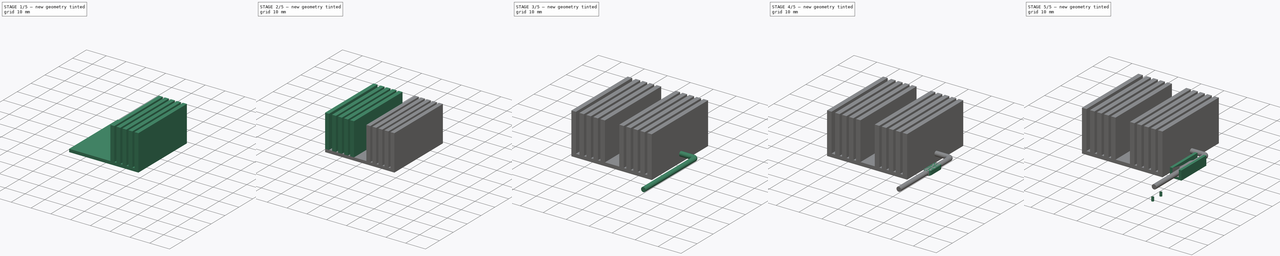
[diagram: build sequence overview — one tinted view per stage of 5, left to right]
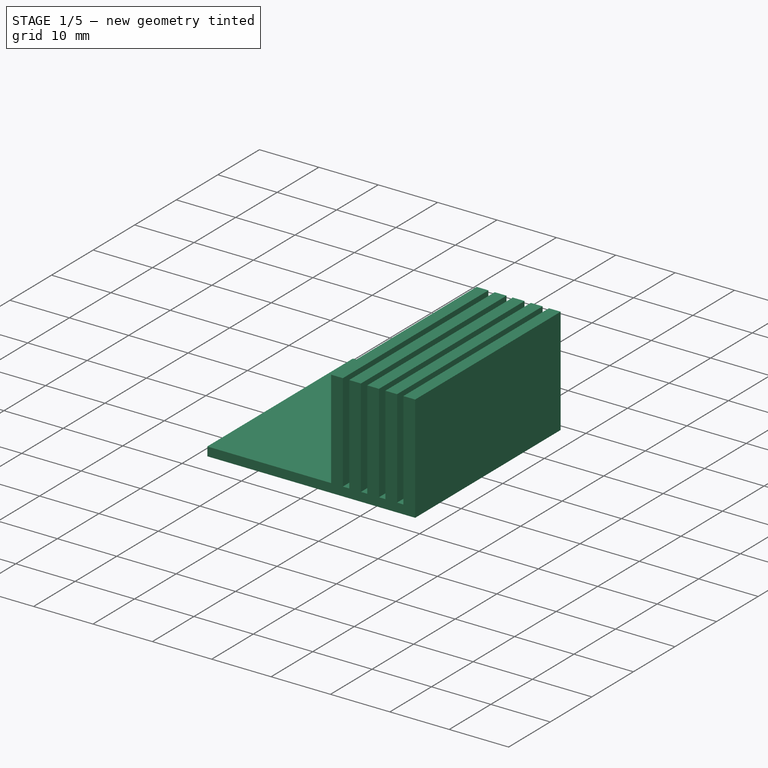
[diagram: stage 1 of 5 — iso view after this stage's code; geometry added in this stage tinted green]
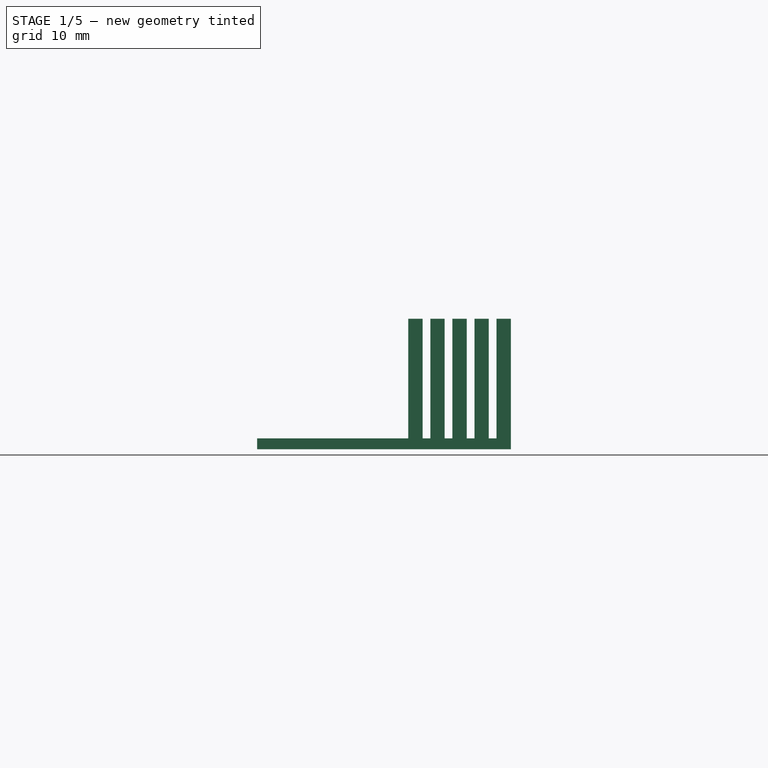
[diagram: stage 1 of 5 — front view after this stage's code; geometry added in this stage tinted green]
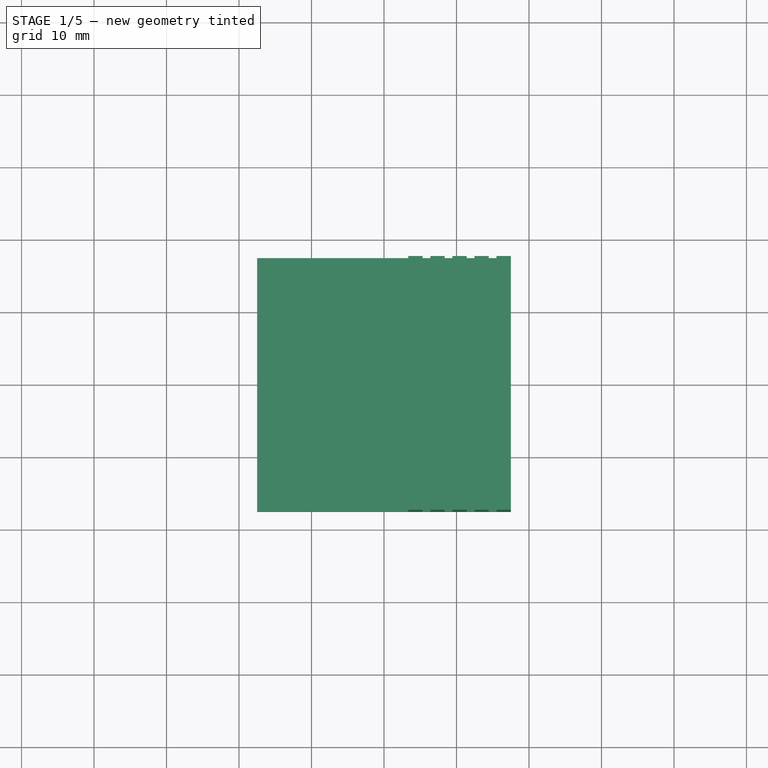
[diagram: stage 1 of 5 — top view after this stage's code; geometry added in this stage tinted green]
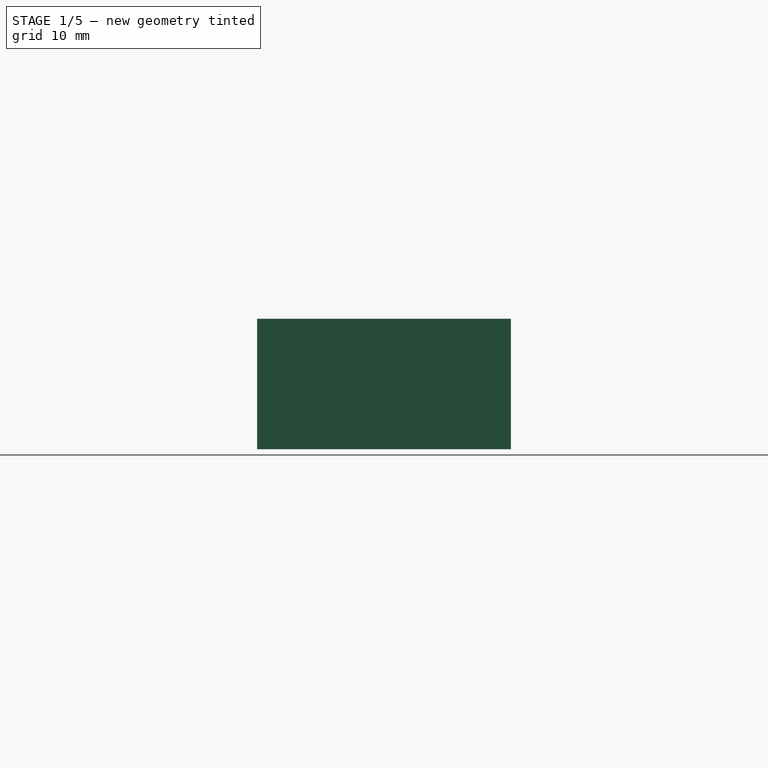
[diagram: stage 1 of 5 — right view after this stage's code; geometry added in this stage tinted green]
FCSTD DOCUMENT  (FreeCAD 0.20R29177 (Git))
Label: Aavid-heatsink1
License: All rights reserved
LicenseURL: http://en.wikipedia.org/wiki/All_rights_reserved
objects: PartDesign::AdditiveBox×17, PartDesign::Fillet×8, PartDesign::Body×4, Part::FeaturePython×2, Part::Feature×2, PartDesign::Chamfer×2, App::DocumentObjectGroup×1, Sketcher::SketchObject×1, PartDesign::SubtractiveEllipsoid×1, PartDesign::SubtractiveBox×1, App::Part×1, App::MeasureDistance×1
note: 67 computed .brp shape members not serialized (recipe doc carries the construction recipe); baked Part::Feature solids carry a one-line shape summary decoded from their .brp

FEATURE [Part::Feature] Shape001003  label="TopPads"
  shape: bbox 50.56 x 68.34 x 0.01 mm, 16 faces, 4 solids (baked)
FEATURE [Part::Feature] Shape001004  label="BotPads"
  shape: bbox 50.56 x 68.34 x 0.01 mm, 16 faces, 4 solids (baked)
FEATURE [App::DocumentObjectGroup] Heatsink_35x35mm_SpringFixation_fp
  Group = -> [FFab_lines,Shape001003,Shape001004,THPs]
FEATURE [Sketcher::SketchObject] Sketch  label="Pads_Poly"
  FullyConstrained = false
  MapMode = 5
  Support = -> [XY_Plane]
  sketch-geometry (56):
    g0: LineSegment StartX=-17.5 StartY=-17.45 StartZ=0 EndX=-17.5 EndY=17.55 EndZ=0
    g1: LineSegment StartX=-17.5 StartY=17.55 StartZ=0 EndX=-17.5 EndY=-17.55 EndZ=0
    g2: LineSegment StartX=-17.5 StartY=17.55 StartZ=0 EndX=17.55 EndY=17.5 EndZ=0
    g3: LineSegment StartX=17.55 StartY=17.5 StartZ=0 EndX=-17.5 EndY=17.45 EndZ=0
    g4: LineSegment StartX=17.55 StartY=17.5 StartZ=0 EndX=17.55 EndY=-17.5 EndZ=0
    g5: LineSegment StartX=17.5 StartY=-17.55 StartZ=0 EndX=17.45 EndY=17.5 EndZ=0
    g6: LineSegment StartX=17.5 StartY=-17.55 StartZ=0 EndX=-17.5 EndY=-17.55 EndZ=0
    g7: LineSegment StartX=-17.5 StartY=-17.45 StartZ=0 EndX=17.55 EndY=-17.5 EndZ=0
    g8: LineSegment StartX=-26.72 StartY=25.4 StartZ=0 EndX=-26.67 EndY=35.61 EndZ=0
    g9: LineSegment StartX=-26.67 StartY=35.61 StartZ=0 EndX=-26.62 EndY=25.4 EndZ=0
    g10: LineSegment StartX=-21.54 StartY=35.56 StartZ=0 EndX=-21.54 EndY=25.4 EndZ=0
    g11: LineSegment StartX=-21.64 StartY=25.4 StartZ=0 EndX=-21.64 EndY=35.56 EndZ=0
    g12: LineSegment StartX=-21.54 StartY=25.4 StartZ=0 EndX=-26.72 EndY=25.4 EndZ=0
    g13: LineSegment StartX=-26.72 StartY=25.4 StartZ=0 EndX=-21.54 EndY=25.4 EndZ=0
    g14: LineSegment StartX=-22.81 StartY=25.4 StartZ=0 EndX=-22.8271 EndY=2.54 EndZ=0
    g15: ArcOfCircle CenterX=-21.59 CenterY=2.55711 CenterZ=0 NormalX=0 NormalY=0 NormalZ=1 AngleXU=-1.5708 Radius=1.23726 StartAngle=4.72622 EndAngle=6.28319
    g16: LineSegment StartX=-21.59 StartY=1.31985 StartZ=0 EndX=-17.5 EndY=1.32 EndZ=0
    g17: LineSegment StartX=-17.5 StartY=1.22 StartZ=0 EndX=-21.59 EndY=1.29434 EndZ=0
    g18: ArcOfCircle CenterX=-21.5814 CenterY=2.54 CenterZ=0 NormalX=0 NormalY=0 NormalZ=1 AngleXU=-1.5708 Radius=1.24569 StartAngle=4.71239 EndAngle=6.27632
    g19: LineSegment StartX=-22.91 StartY=2.54 StartZ=0 EndX=-22.91 EndY=25.4 EndZ=0
    g20: LineSegment StartX=-25.35 StartY=1.27 StartZ=0 EndX=-25.45 EndY=25.4 EndZ=0
    g21: LineSegment StartX=-25.35 StartY=25.4 StartZ=0 EndX=-25.35 EndY=1.27 EndZ=0
    g22: ArcOfCircle CenterX=-22.86 CenterY=1.26185 CenterZ=0 NormalX=0 NormalY=0 NormalZ=1 AngleXU=-1.5708 Radius=2.49001 StartAngle=4.70911 EndAngle=6.28319
    g23: LineSegment StartX=-22.86 StartY=-1.22817 StartZ=0 EndX=-17.5 EndY=-1.22 EndZ=0
    g24: LineSegment StartX=-17.5 StartY=-1.32 StartZ=0 EndX=-22.86 EndY=-1.32 EndZ=0
    g25: ArcOfCircle CenterX=-22.86 CenterY=1.36352 CenterZ=0 NormalX=0 NormalY=0 NormalZ=1 AngleXU=-1.5708 Radius=2.59169 StartAngle=4.74848 EndAngle=6.28319
    g26: LineSegment StartX=-21.54 StartY=35.56 StartZ=0 EndX=-26.67 EndY=35.61 EndZ=0
    g27: LineSegment StartX=-26.67 StartY=35.61 StartZ=0 EndX=-21.54 EndY=35.56 EndZ=0
    g28: LineSegment StartX=21.59 StartY=-35.51 StartZ=0 EndX=21.59 EndY=-25.25 EndZ=0
    g29: LineSegment StartX=21.59 StartY=-25.25 StartZ=0 EndX=21.59 EndY=-35.51 EndZ=0
    g30: LineSegment StartX=26.67 StartY=-25.25 StartZ=0 EndX=26.72 EndY=-35.46 EndZ=0
    g31: LineSegment StartX=26.62 StartY=-35.46 StartZ=0 EndX=26.67 EndY=-25.25 EndZ=0
    g32: LineSegment StartX=21.59 StartY=-25.25 StartZ=0 EndX=26.67 EndY=-25.25 EndZ=0
    g33: LineSegment StartX=26.67 StartY=-25.35 StartZ=0 EndX=21.59 EndY=-25.35 EndZ=0
    g34: LineSegment StartX=25.35 StartY=-25.3 StartZ=0 EndX=25.35 EndY=-1.17 EndZ=0
    g35: ArcOfCircle CenterX=22.797 CenterY=-1.16077 CenterZ=0 NormalX=0 NormalY=0 NormalZ=1 AngleXU=1.5708 Radius=2.57229 StartAngle=4.7088 EndAngle=6.25869
    g36: LineSegment StartX=22.86 StartY=1.32 StartZ=0 EndX=17.5 EndY=1.32 EndZ=0
    g37: LineSegment StartX=17.5 StartY=1.42 StartZ=0 EndX=22.86 EndY=1.41075 EndZ=0
    g38: ArcOfCircle CenterX=22.86 CenterY=-1.17 CenterZ=0 NormalX=0 NormalY=0 NormalZ=1 AngleXU=1.5708 Radius=2.58075 StartAngle=4.71239 EndAngle=6.28319
    g39: LineSegment StartX=25.4407 StartY=-1.17 StartZ=0 EndX=25.45 EndY=-25.3 EndZ=0
    g40: LineSegment StartX=21.59 StartY=-35.51 StartZ=0 EndX=26.72 EndY=-35.46 EndZ=0
    g41: LineSegment StartX=26.72 StartY=-35.46 StartZ=0 EndX=21.59 EndY=-35.51 EndZ=0
    g42: LineSegment StartX=22.81 StartY=-2.44 StartZ=0 EndX=22.91 EndY=-25.3 EndZ=0
    g43: LineSegment StartX=22.81 StartY=-25.3 StartZ=0 EndX=22.81 EndY=-2.44 EndZ=0
    g44: ArcOfCircle CenterX=21.59 CenterY=-2.35008 CenterZ=0 NormalX=0 NormalY=0 NormalZ=1 AngleXU=1.5708 Radius=1.22331 StartAngle=4.63882 EndAngle=6.28319
    g45: LineSegment StartX=21.59 StartY=-1.12677 StartZ=0 EndX=17.5 EndY=-1.22 EndZ=0
    g46: LineSegment StartX=17.5 StartY=-1.12 StartZ=0 EndX=21.59 EndY=-1.12677 EndZ=0
    g47: ArcOfCircle CenterX=21.59 CenterY=-2.44679 CenterZ=0 NormalX=0 NormalY=0 NormalZ=1 AngleXU=1.5708 Radius=1.32002 StartAngle=4.71753 EndAngle=6.28319
    g48: LineSegment StartX=21.59 StartY=-18.525 StartZ=0 EndX=21.59 EndY=-3.125 EndZ=0
    g49: LineSegment StartX=21.59 StartY=-3.125 StartZ=0 EndX=21.59 EndY=-18.525 EndZ=0
    g50: LineSegment StartX=21.59 StartY=-18.525 StartZ=0 EndX=26.67 EndY=-18.525 EndZ=0
    g51: LineSegment StartX=26.67 StartY=-18.625 StartZ=0 EndX=21.59 EndY=-18.625 EndZ=0
    g52: LineSegment StartX=26.67 StartY=-18.525 StartZ=0 EndX=26.62 EndY=-3.075 EndZ=0
    g53: LineSegment StartX=26.72 StartY=-3.075 StartZ=0 EndX=26.67 EndY=-18.525 EndZ=0
    g54: LineSegment StartX=21.59 StartY=-3.125 StartZ=0 EndX=26.72 EndY=-3.075 EndZ=0
    g55: LineSegment StartX=26.72 StartY=-3.075 StartZ=0 EndX=21.59 EndY=-3.125 EndZ=0
  constraints (50):
    c: Coincident(g8,g12)
    c: Coincident(g8,g13)
    c: Coincident(g27,g8)
    c: Coincident(g27,g9)
    c: Coincident(g27,g26)
    c: Coincident(g22,g20)
    c: Coincident(g23,g25)
    c: Coincident(g23,g22)
    c: Coincident(g14,g15)
    c: Coincident(g14,g18)
    c: Coincident(g18,g17)
    c: Coincident(g15,g16)
    c: Coincident(g10,g12)
    c: Coincident(g10,g13)
    c: Coincident(g10,g26)
    c: Coincident(g10,g27)
    c: Coincident(g6,g1)
    c: Coincident(g7,g0)
    c: Coincident(g2,g0)
    c: Coincident(g2,g1)
    c: Coincident(g6,g5)
    c: Coincident(g4,g7)
    c: Coincident(g4,g3)
    c: Coincident(g4,g2)
    c: Coincident(g41,g28)
    c: Coincident(g41,g40)
    c: Coincident(g41,g29)
    c: Coincident(g32,g28)
    c: Coincident(g32,g29)
    c: Coincident(g50,g48)
    c: Coincident(g50,g49)
    c: Coincident(g55,g54)
    c: Coincident(g55,g48)
    c: Coincident(g55,g49)
    c: Coincident(g47,g45)
    c: Coincident(g47,g44)
    c: Coincident(g47,g46)
    c: Coincident(g44,g43)
    c: Coincident(g44,g42)
    c: Coincident(g37,g35)
    c: Coincident(g37,g38)
    c: Coincident(g39,g38)
    c: Coincident(g30,g40)
    c: Coincident(g30,g41)
    c: Coincident(g32,g31)
    c: Coincident(g32,g30)
    c: Coincident(g50,g52)
    c: Coincident(g50,g53)
    c: Coincident(g53,g54)
    c: Coincident(g53,g55)
FEATURE [PartDesign::AdditiveBox] Box  label="metal"
  AttacherType = Attacher::AttachEngine3D
  AttachmentOffset = pos=(-17.5,-17.5,0) rot=(0,0,1;0rad)
  Height = 1.5
  Length = 35
  MapMode = 5
  Placement = pos=(-17.5,-17.5,0) rot=(0,0,1;0rad)
  Support = -> [XY_Plane]
  Width = 35
FEATURE [PartDesign::Body] Body003  label="metal-film"
  Group = -> [Box016]
  Origin = -> Origin004
  Tip = -> Box016
FEATURE [PartDesign::AdditiveBox] Box017  label="left-fin1"
  AttacherType = Attacher::AttachEngine3D
  AttachmentOffset = pos=(15.5245,-17.5,1.5) rot=(0,0,1;0rad)
  BaseFeature = -> Box
  Height = 16.5
  Length = 1.9755
  MapMode = 5
  Placement = pos=(15.5245,-17.5,1.5) rot=(0,0,1;0rad)
  Support = -> [XY_Plane]
  Width = 35
FEATURE [PartDesign::AdditiveBox] Box018
  AttacherType = Attacher::AttachEngine3D
  AttachmentOffset = pos=(12.481,-17.5,1.5) rot=(0,0,1;0rad)
  BaseFeature = -> Box017
  Height = 16.5
  Length = 1.9755
  MapMode = 5
  Placement = pos=(12.481,-17.5,1.5) rot=(0,0,1;0rad)
  Support = -> [XY_Plane]
  Width = 35
FEATURE [PartDesign::AdditiveBox] Box019
  AttacherType = Attacher::AttachEngine3D
  AttachmentOffset = pos=(9.43754,-17.5,1.5) rot=(0,0,1;0rad)
  BaseFeature = -> Box018
  Height = 16.5
  Length = 1.9755
  MapMode = 5
  Placement = pos=(9.43754,-17.5,1.5) rot=(0,0,1;0rad)
  Support = -> [XY_Plane]
  Width = 35
FEATURE [PartDesign::AdditiveBox] Box020
  AttacherType = Attacher::AttachEngine3D
  AttachmentOffset = pos=(6.39407,-17.5,1.5) rot=(0,0,1;0rad)
  BaseFeature = -> Box019
  Height = 16.5
  Length = 1.9755
  MapMode = 5
  Placement = pos=(6.39407,-17.5,1.5) rot=(0,0,1;0rad)
  Support = -> [XY_Plane]
  Width = 35
FEATURE [PartDesign::AdditiveBox] Box021  label="left-fin5"
  AttacherType = Attacher::AttachEngine3D
  AttachmentOffset = pos=(3.35059,-17.5,1.5) rot=(0,0,1;0rad)
  BaseFeature = -> Box020
  Height = 16.5
  Length = 1.9755
  MapMode = 5
  Placement = pos=(3.35059,-17.5,1.5) rot=(0,0,1;0rad)
  Support = -> [XY_Plane]
  Width = 35
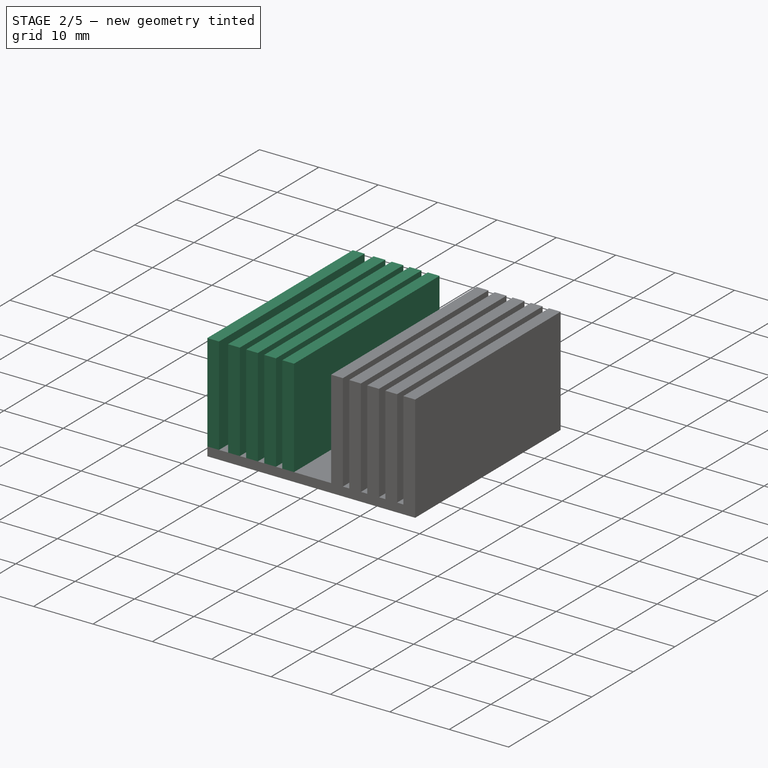
[diagram: stage 2 of 5 — iso view after this stage's code; geometry added in this stage tinted green]
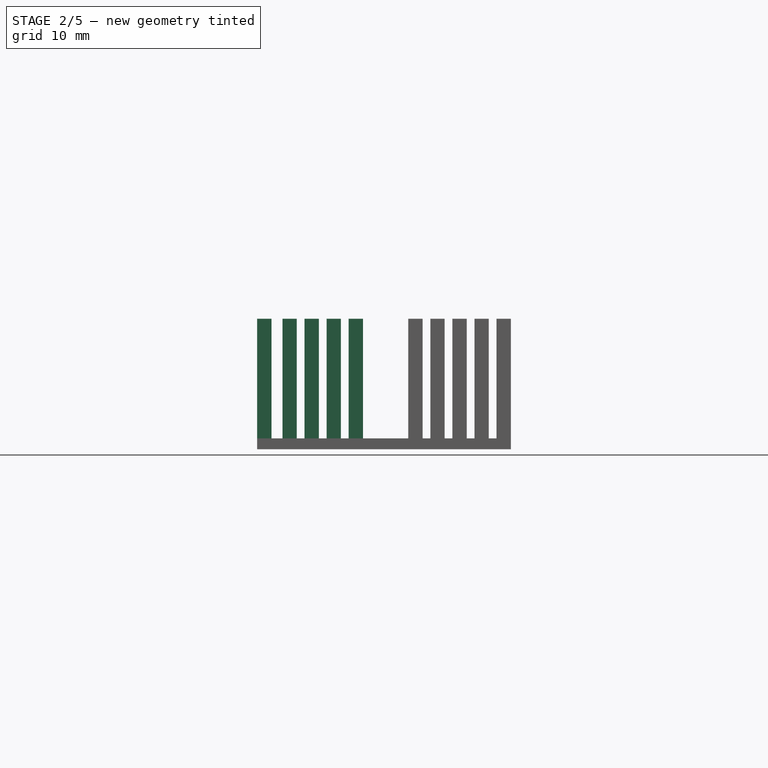
[diagram: stage 2 of 5 — front view after this stage's code; geometry added in this stage tinted green]
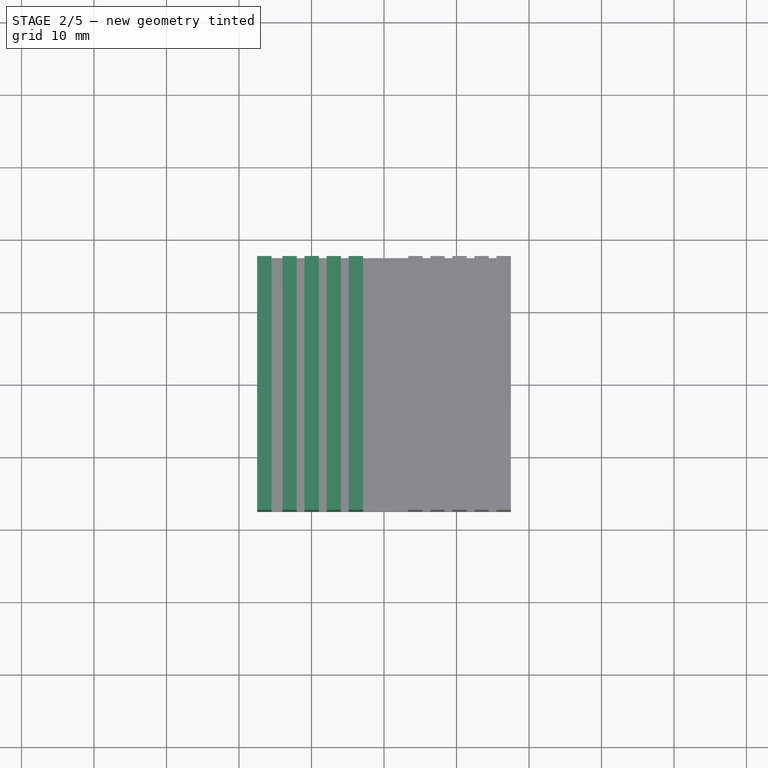
[diagram: stage 2 of 5 — top view after this stage's code; geometry added in this stage tinted green]
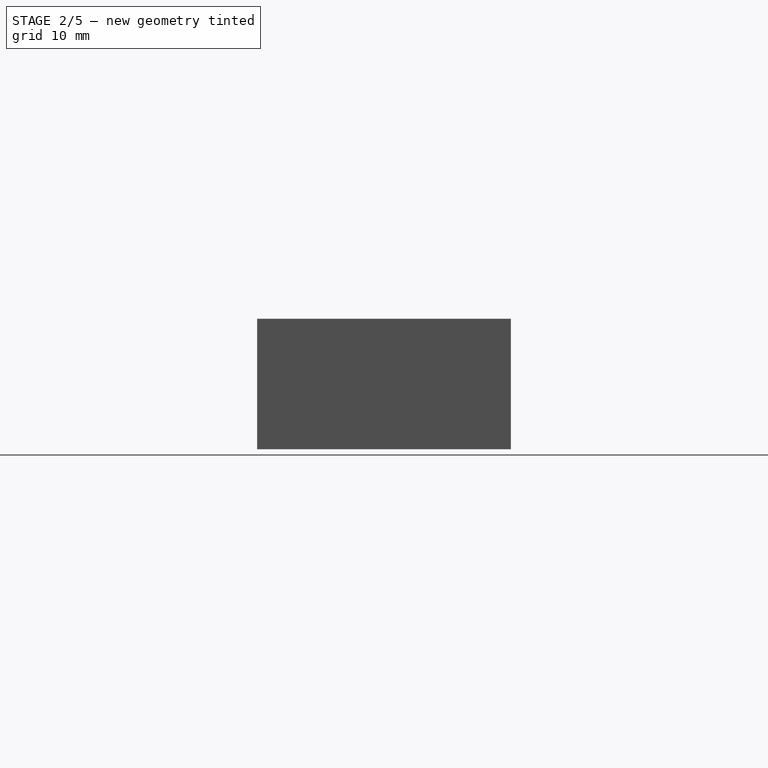
[diagram: stage 2 of 5 — right view after this stage's code; geometry added in this stage tinted green]
FEATURE [PartDesign::Body] Body001  label="spring-arms"
  Group = -> [Box010,Box011,Box012,Fillet,Fillet001,Fillet002,Box013,Chamfer,Chamfer001,Ellipsoid,Fillet003,Fillet004,Fillet005,Fillet006,Fillet007]
  Origin = -> Origin001
  Tip = -> Fillet007
FEATURE [PartDesign::AdditiveBox] Box016
  AttacherType = Attacher::AttachEngine3D
  AttachmentOffset = pos=(-15,-15,0) rot=(0,0,1;0rad)
  Height = 0.05
  Length = 30
  MapMode = 5
  Placement = pos=(-15,-15,0) rot=(0,0,1;0rad)
  Support = -> [XY_Plane004]
  Width = 30
FEATURE [PartDesign::AdditiveBox] Box022  label="right-fin1"
  AttacherType = Attacher::AttachEngine3D
  AttachmentOffset = pos=(-4.87233,-17.5,1.5) rot=(0,0,1;0rad)
  BaseFeature = -> Box021
  Height = 16.5
  Length = 1.9755
  MapMode = 5
  Placement = pos=(-4.87233,-17.5,1.5) rot=(0,0,1;0rad)
  Support = -> [XY_Plane]
  Width = 35
FEATURE [PartDesign::AdditiveBox] Box023
  AttacherType = Attacher::AttachEngine3D
  AttachmentOffset = pos=(-7.9158,-17.5,1.5) rot=(0,0,1;0rad)
  BaseFeature = -> Box022
  Height = 16.5
  Length = 1.9755
  MapMode = 5
  Placement = pos=(-7.9158,-17.5,1.5) rot=(0,0,1;0rad)
  Support = -> [XY_Plane]
  Width = 35
FEATURE [PartDesign::AdditiveBox] Box024
  AttacherType = Attacher::AttachEngine3D
  AttachmentOffset = pos=(-10.9593,-17.5,1.5) rot=(0,0,1;0rad)
  BaseFeature = -> Box023
  Height = 16.5
  Length = 1.9755
  MapMode = 5
  Placement = pos=(-10.9593,-17.5,1.5) rot=(0,0,1;0rad)
  Support = -> [XY_Plane]
  Width = 35
FEATURE [PartDesign::AdditiveBox] Box025  label="right-fin4"
  AttacherType = Attacher::AttachEngine3D
  AttachmentOffset = pos=(-14.0028,-17.5,1.5) rot=(0,0,1;0rad)
  BaseFeature = -> Box024
  Height = 16.5
  Length = 1.9755
  MapMode = 5
  Placement = pos=(-14.0028,-17.5,1.5) rot=(0,0,1;0rad)
  Support = -> [XY_Plane]
  Width = 35
FEATURE [PartDesign::AdditiveBox] Box026
  AttacherType = Attacher::AttachEngine3D
  AttachmentOffset = pos=(-17.5,-17.5,1.5) rot=(0,0,1;0rad)
  BaseFeature = -> Box025
  Height = 16.5
  Length = 1.9755
  MapMode = 5
  Placement = pos=(-17.5,-17.5,1.5) rot=(0,0,1;0rad)
  Support = -> [XY_Plane]
  Width = 35
FEATURE [PartDesign::Body] Body  label="Main"
  Group = -> [Box,Box017,Box018,Box019,Box020,Box021,Box022,Box023,Box024,Box025,Box026]
  Origin = -> Origin
  Placement = pos=(0,0,0.05) rot=(0,0,1;1.5708rad)
  Tip = -> Box026
FEATURE [App::Part] Part  label="Aavid_374724B60024G"
  Group = -> [Body002,Body001,Body,Body003]
  Origin = -> Origin003
FEATURE [App::MeasureDistance] Distance  label="Distance: 3,4008 mm"
  Distance = 3.40078
  P1 = (-17.5,-0.0501866,1.54188)
  P2 = (-17.5,3.35059,1.55)
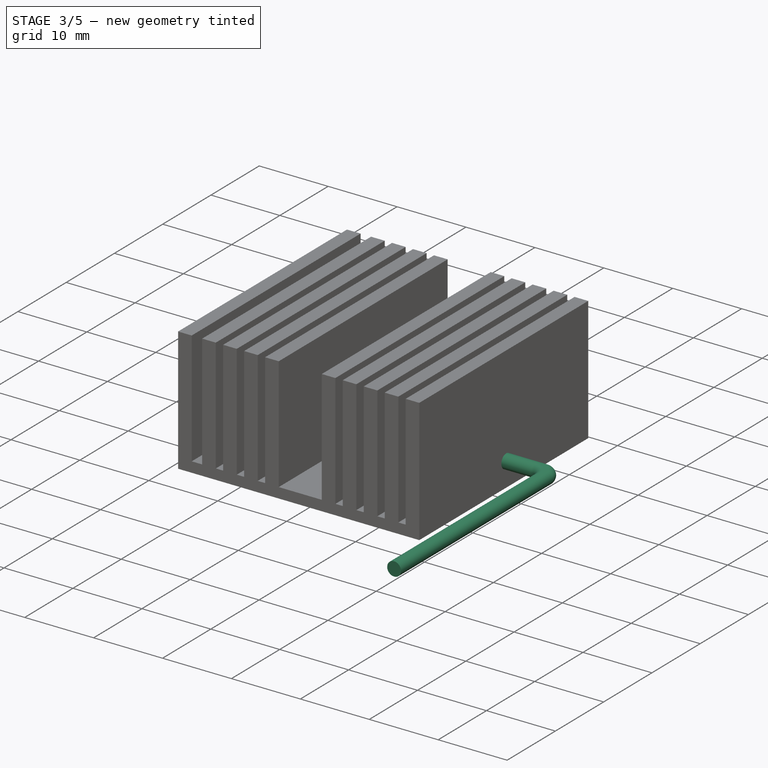
[diagram: stage 3 of 5 — iso view after this stage's code; geometry added in this stage tinted green]
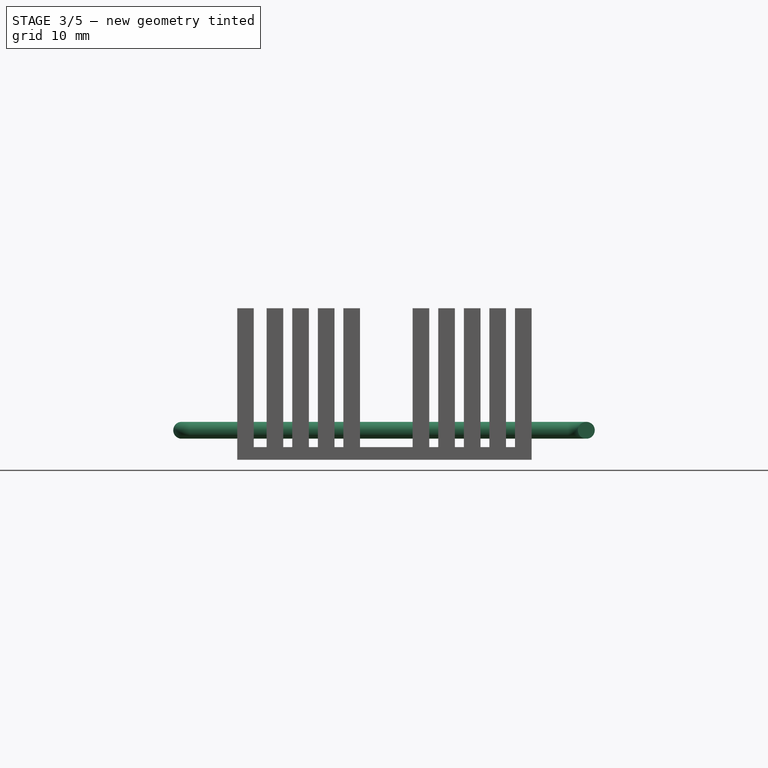
[diagram: stage 3 of 5 — front view after this stage's code; geometry added in this stage tinted green]
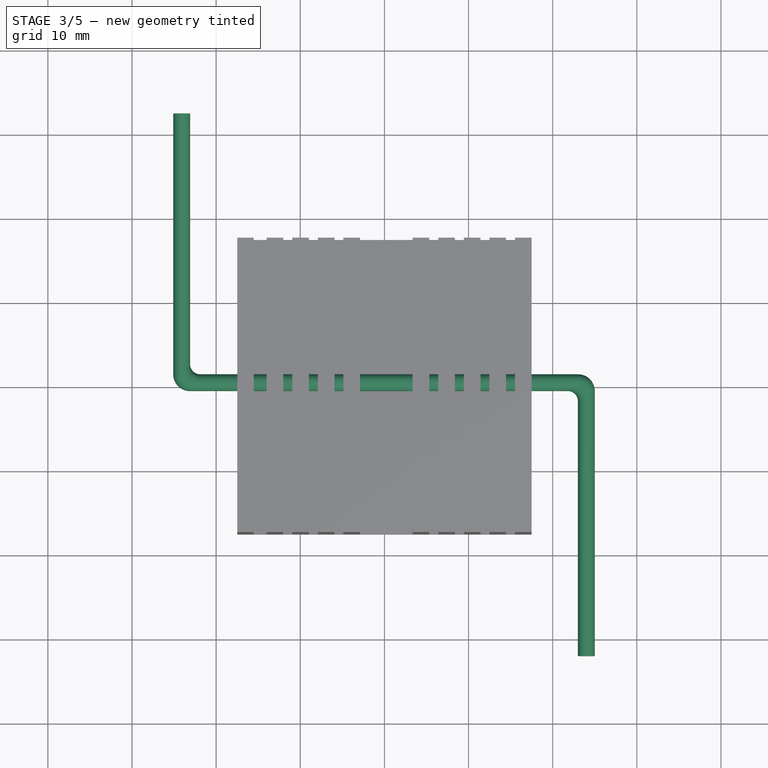
[diagram: stage 3 of 5 — top view after this stage's code; geometry added in this stage tinted green]
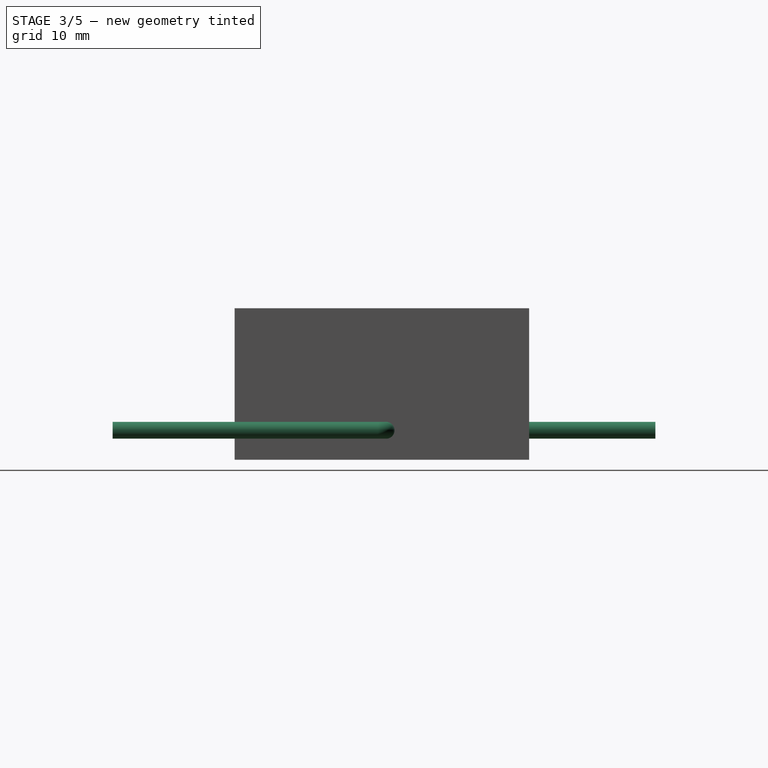
[diagram: stage 3 of 5 — right view after this stage's code; geometry added in this stage tinted green]
FEATURE [PartDesign::AdditiveBox] Box010  label="base-lower-arm"
  AttacherType = Attacher::AttachEngine3D
  AttachmentOffset = pos=(23,-32,2.5) rot=(0,0,1;0rad)
  Height = 2
  Length = 2
  MapMode = 5
  Placement = pos=(23,-32,2.5) rot=(0,0,1;0rad)
  Support = -> [XY_Plane001]
  Width = 33.5
FEATURE [PartDesign::AdditiveBox] Box011  label="mid-arm"
  AttacherType = Attacher::AttachEngine3D
  AttachmentOffset = pos=(-23.1,-0.5,2.5) rot=(0,0,1;0rad)
  BaseFeature = -> Box010
  Height = 2
  Length = 46.1
  MapMode = 5
  Placement = pos=(-23.1,-0.5,2.5) rot=(0,0,1;0rad)
  Support = -> [XY_Plane001]
  Width = 2
FEATURE [PartDesign::AdditiveBox] Box012
  AttacherType = Attacher::AttachEngine3D
  AttachmentOffset = pos=(-25.1,-0.5,2.5) rot=(0,0,1;0rad)
  BaseFeature = -> Box011
  Height = 2
  Length = 2
  MapMode = 5
  Placement = pos=(-25.1,-0.5,2.5) rot=(0,0,1;0rad)
  Support = -> [XY_Plane001]
  Width = 33
FEATURE [PartDesign::Fillet] Fillet  label="outer-bend"
  Base = -> Box012 [Edge25,Edge19]
  BaseFeature = -> Box012
  Placement = pos=(-25.1,-0.5,2.5) rot=(0,0,1;0rad)
  Radius = 1.99
  SupportTransform = false
  UseAllEdges = false
FEATURE [PartDesign::Fillet] Fillet001  label="inner-bend"
  Base = -> Fillet [Edge17,Edge23]
  BaseFeature = -> Fillet
  Placement = pos=(-25.1,-0.5,2.5) rot=(0,0,1;0rad)
  Radius = 1.2
  SupportTransform = false
  UseAllEdges = false
FEATURE [PartDesign::Fillet] Fillet002  label="outer-smooth"
  Base = -> Fillet001 [Edge7,Edge5,Edge11,Edge12,Edge33,Edge20,Edge24,Edge29,Edge38,Edge25,Edge10,Edge50,Edge47,Edge43,Edge31,Edge1,Edge15,Edge16,Edge37,Edge35,Edge36]
  BaseFeature = -> Fillet001
  Placement = pos=(-25.1,-0.5,2.5) rot=(0,0,1;0rad)
  Radius = 0.99
  SupportTransform = false
  UseAllEdges = false
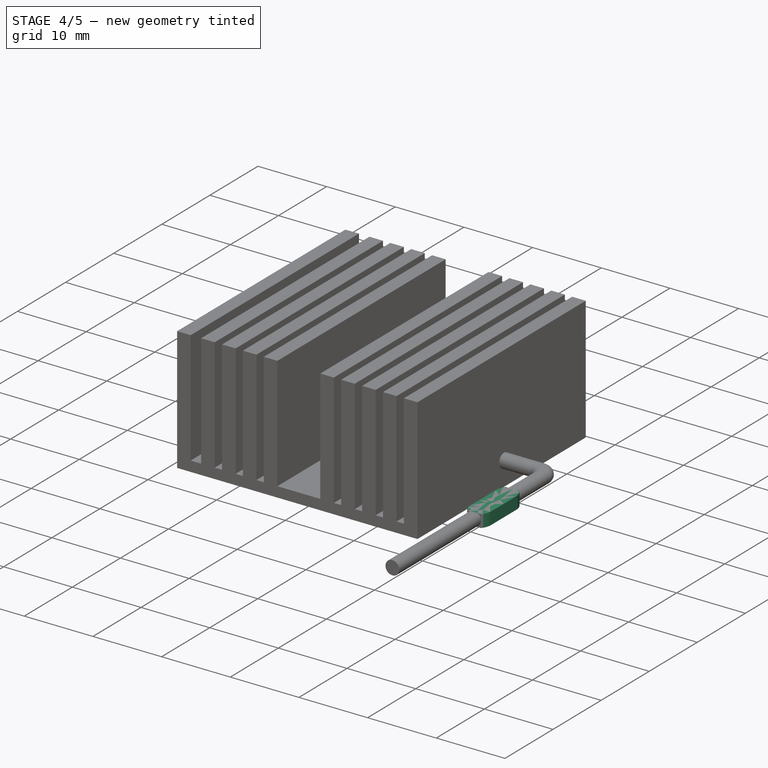
[diagram: stage 4 of 5 — iso view after this stage's code; geometry added in this stage tinted green]
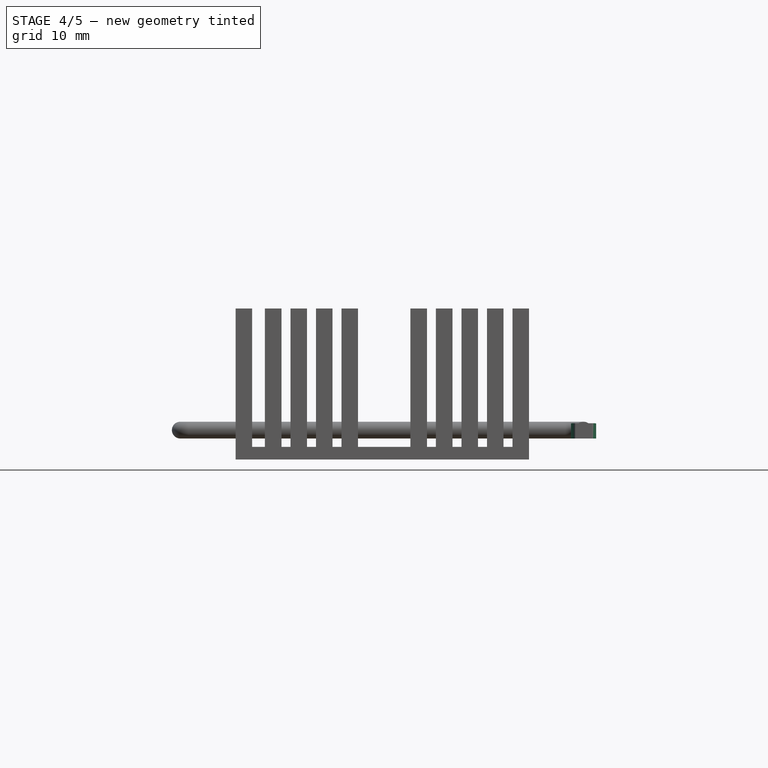
[diagram: stage 4 of 5 — front view after this stage's code; geometry added in this stage tinted green]
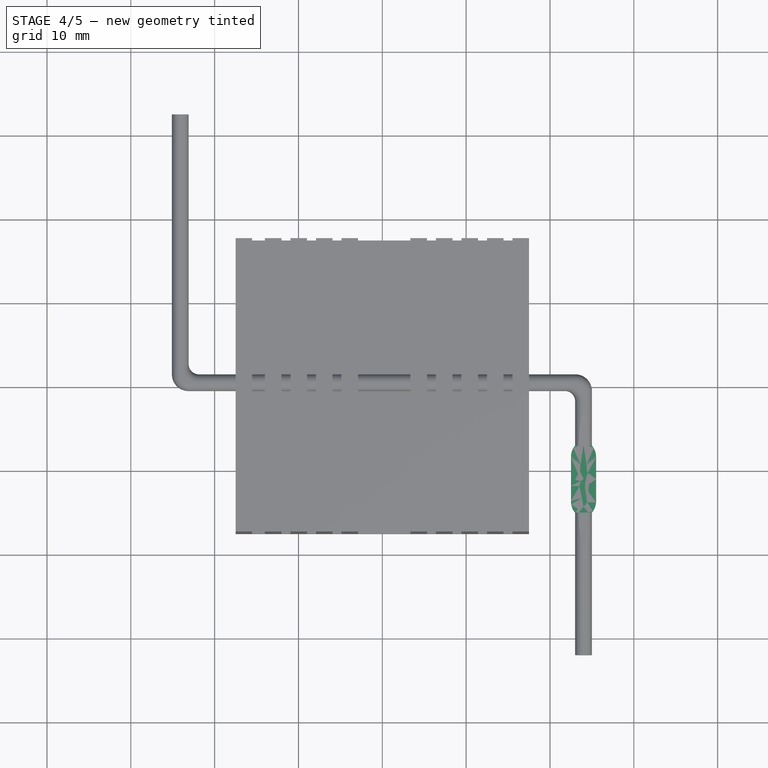
[diagram: stage 4 of 5 — top view after this stage's code; geometry added in this stage tinted green]
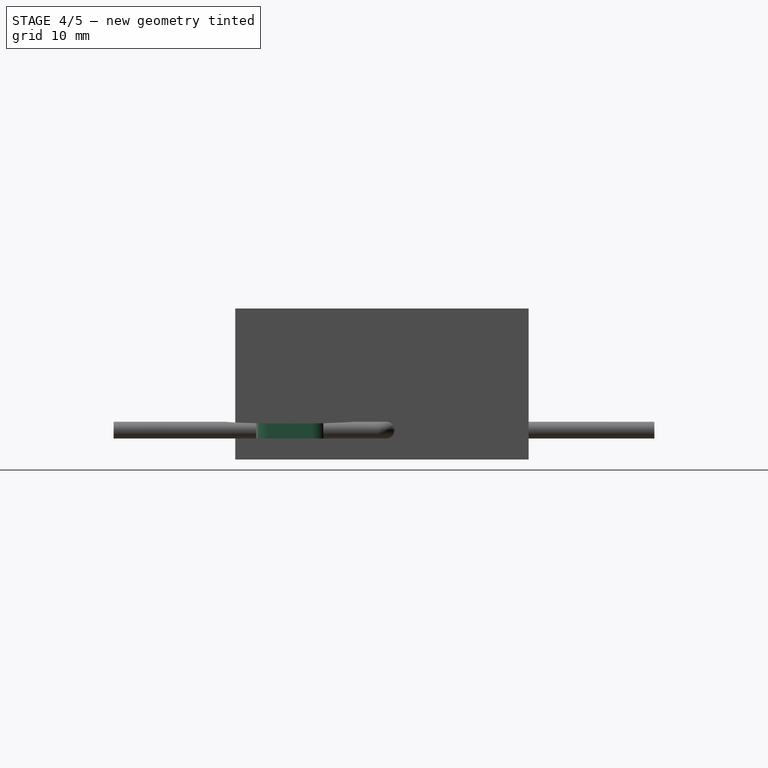
[diagram: stage 4 of 5 — right view after this stage's code; geometry added in this stage tinted green]
FEATURE [PartDesign::AdditiveBox] Box013
  AttacherType = Attacher::AttachEngine3D
  AttachmentOffset = pos=(22.5,-15,2.5) rot=(0,0,1;0rad)
  BaseFeature = -> Fillet002
  Height = 2
  Length = 3
  MapMode = 5
  Placement = pos=(22.5,-15,2.5) rot=(0,0,1;0rad)
  Support = -> [XY_Plane001]
  Width = 8
FEATURE [PartDesign::Chamfer] Chamfer
  Angle = 50
  Base = -> Box013 [Edge23,Edge39]
  BaseFeature = -> Box013
  ChamferType = 2
  FlipDirection = false
  Placement = pos=(22.5,-15,2.5) rot=(0,0,1;0rad)
  Size = 0.499
  Size2 = 1
  SupportTransform = false
  UseAllEdges = false
FEATURE [PartDesign::Chamfer] Chamfer001
  Angle = 40
  Base = -> Chamfer [Edge85,Edge26]
  BaseFeature = -> Chamfer
  ChamferType = 2
  FlipDirection = false
  Placement = pos=(22.5,-15,2.5) rot=(0,0,1;0rad)
  Size = 0.5955
  Size2 = 1
  SupportTransform = false
  UseAllEdges = false
FEATURE [PartDesign::SubtractiveEllipsoid] Ellipsoid
  Angle1 = -90
  Angle2 = 90
  Angle3 = 360
  AttacherType = Attacher::AttachEngine3D
  AttachmentOffset = pos=(24,-11,4.6) rot=(0,0,1;1.5708rad)
  BaseFeature = -> Chamfer001
  MapMode = 5
  Placement = pos=(24,-11,4.6) rot=(0,0,1;1.5708rad)
  Radius1 = 0.33
  Radius2 = 8
  Radius3 = 6
  Support = -> [XY_Plane001]
FEATURE [PartDesign::Fillet] Fillet003  label="front-wing-smooth"
  Base = -> Ellipsoid [Edge79,Edge8]
  BaseFeature = -> Ellipsoid
  Placement = pos=(24,-11,4.6) rot=(0,0,1;1.5708rad)
  Radius = 2.13
  SupportTransform = false
  UseAllEdges = false
FEATURE [PartDesign::Fillet] Fillet004  label="back-wing-smooth"
  Base = -> Fillet003 [Edge86,Edge9]
  BaseFeature = -> Fillet003
  Placement = pos=(24,-11,4.6) rot=(0,0,1;1.5708rad)
  Radius = 2.13
  SupportTransform = false
  UseAllEdges = false
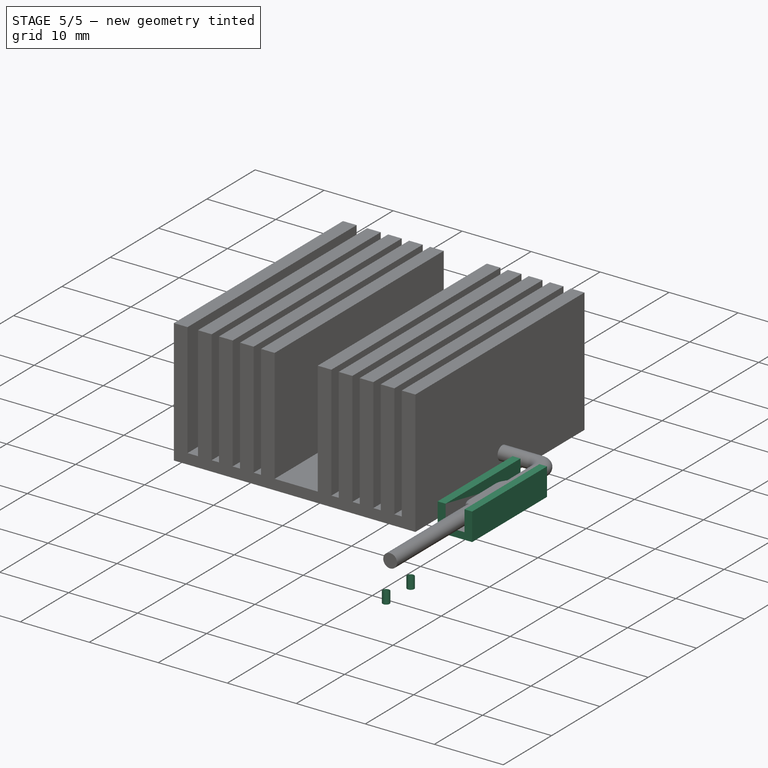
[diagram: stage 5 of 5 — iso view after this stage's code; geometry added in this stage tinted green]
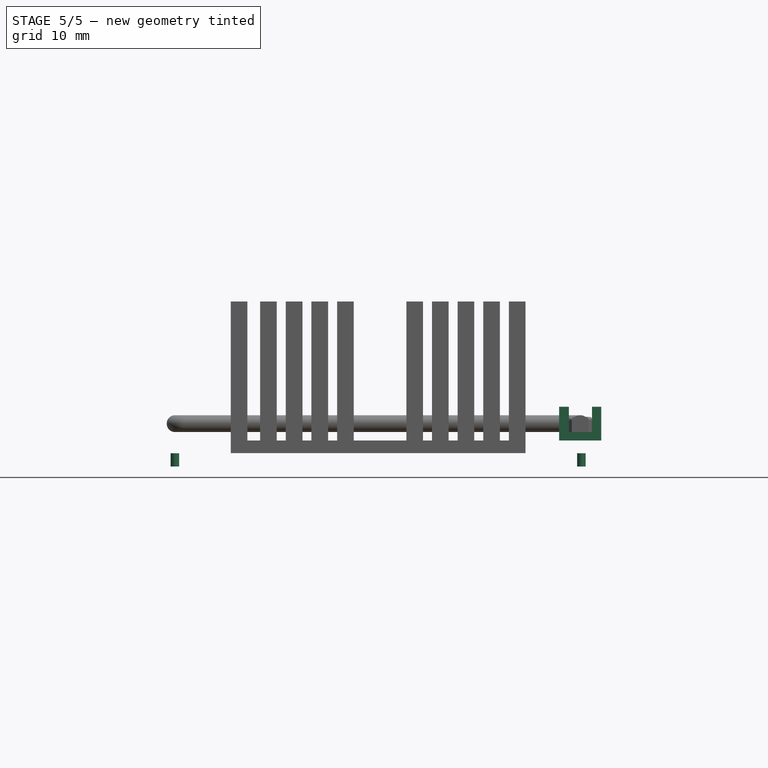
[diagram: stage 5 of 5 — front view after this stage's code; geometry added in this stage tinted green]
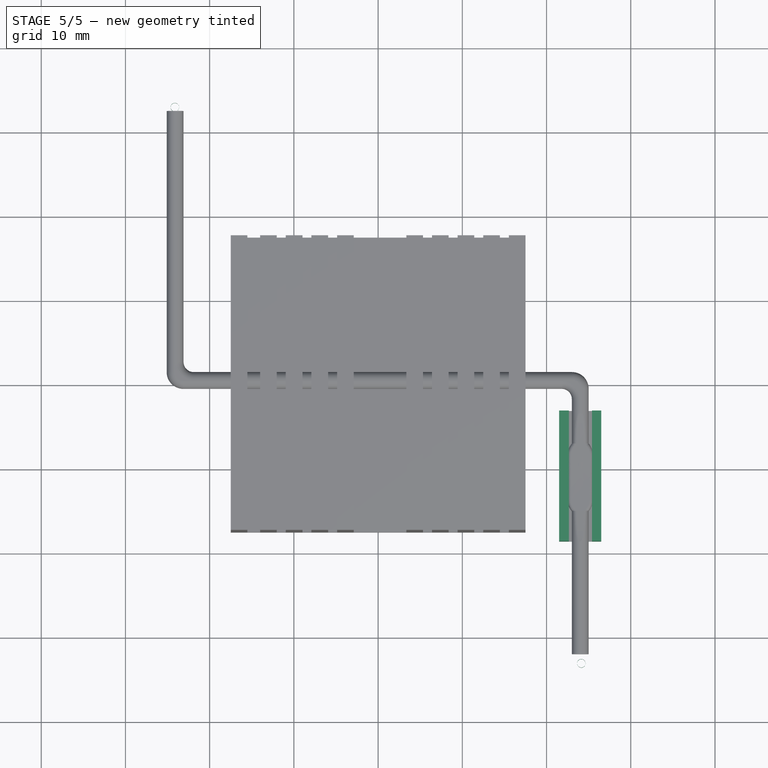
[diagram: stage 5 of 5 — top view after this stage's code; geometry added in this stage tinted green]
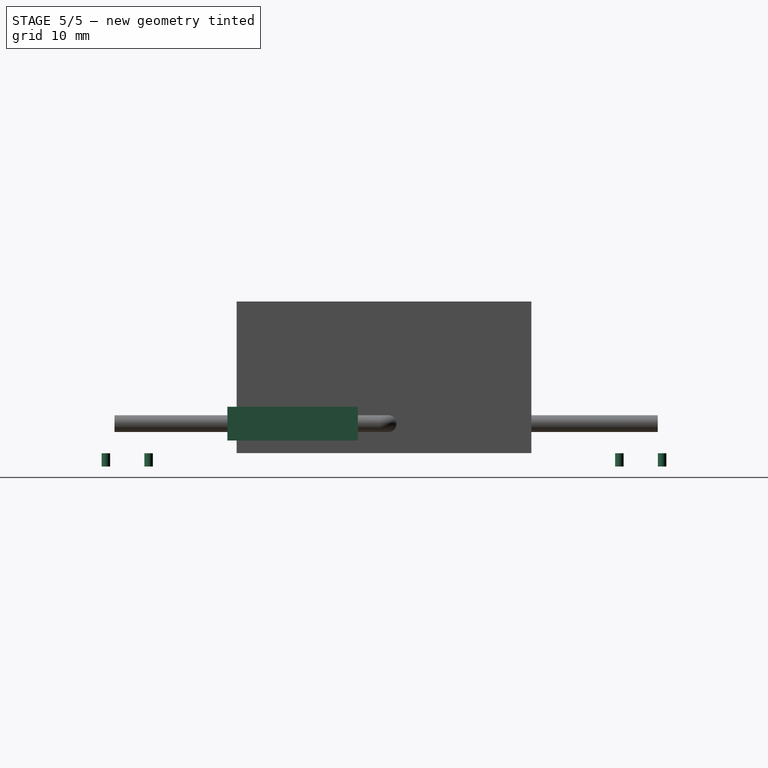
[diagram: stage 5 of 5 — right view after this stage's code; geometry added in this stage tinted green]
FEATURE [Part::FeaturePython] FFab_lines  label="FFab"  # a2plus imported part (geometry in sourceFile) (typed FeaturePython)
  fixedPosition = true
FEATURE [Part::FeaturePython] THPs  label="PTHs"  # a2plus imported part (geometry in sourceFile) (typed FeaturePython)
  fixedPosition = true
FEATURE [PartDesign::Fillet] Fillet005  label="top-wing-smooth"
  Base = -> Fillet004 [Edge34,Edge38,Edge36]
  BaseFeature = -> Fillet004
  Placement = pos=(24,-11,4.6) rot=(0,0,1;1.5708rad)
  Radius = 0.5
  SupportTransform = false
  UseAllEdges = false
FEATURE [PartDesign::Fillet] Fillet006  label="topwing-smooth-right"
  Base = -> Fillet005 [Edge39,Edge29,Edge38,Edge31]
  BaseFeature = -> Fillet005
  Placement = pos=(24,-11,4.6) rot=(0,0,1;1.5708rad)
  Radius = 0.5
  SupportTransform = false
  UseAllEdges = false
FEATURE [PartDesign::AdditiveBox] Box014
  AttacherType = Attacher::AttachEngine3D
  AttachmentOffset = pos=(21.5,-18.6,1.5) rot=(0,0,1;0rad)
  Height = 4
  Length = 5
  MapMode = 5
  Placement = pos=(21.5,-18.6,1.5) rot=(0,0,1;0rad)
  Support = -> [XY_Plane002]
  Width = 15.5
FEATURE [PartDesign::SubtractiveBox] Box015
  AttacherType = Attacher::AttachEngine3D
  AttachmentOffset = pos=(22.65,-19,2.5) rot=(0,0,1;0rad)
  BaseFeature = -> Box014
  Height = 3
  Length = 2.75
  MapMode = 5
  Placement = pos=(22.65,-19,2.5) rot=(0,0,1;0rad)
  Support = -> [XY_Plane002]
  Width = 16
FEATURE [PartDesign::Body] Body002  label="plastic-clamp"
  Group = -> [Box014,Box015]
  Origin = -> Origin002
  Tip = -> Box015
FEATURE [PartDesign::Fillet] Fillet007
  Base = -> Fillet006 [Edge18,Edge20,Edge13]
  BaseFeature = -> Fillet006
  Placement = pos=(24,-11,4.6) rot=(0,0,1;1.5708rad)
  Radius = 0.412
  SupportTransform = false
  UseAllEdges = false
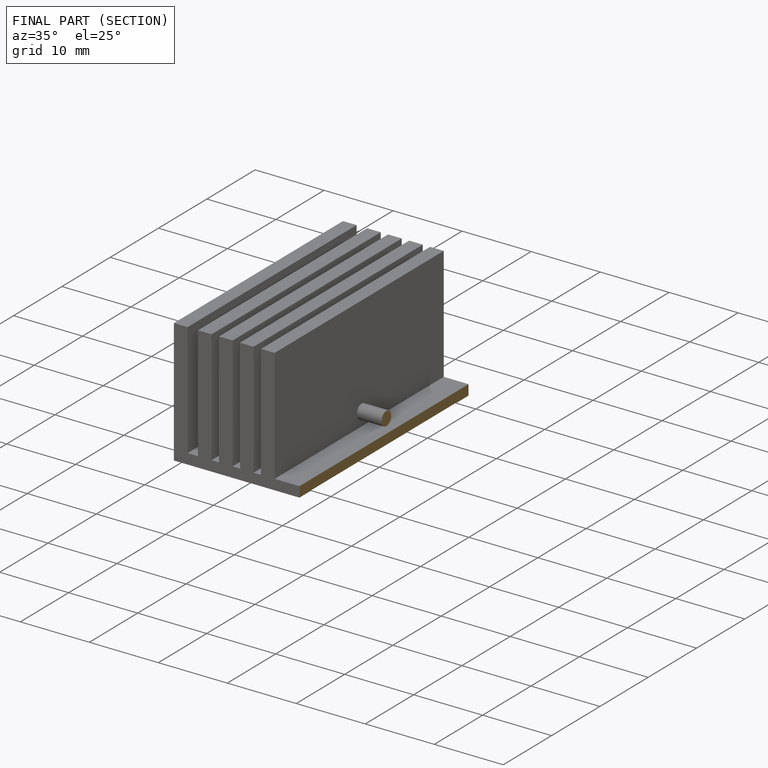
[diagram: finished part — half-section view (interior)]
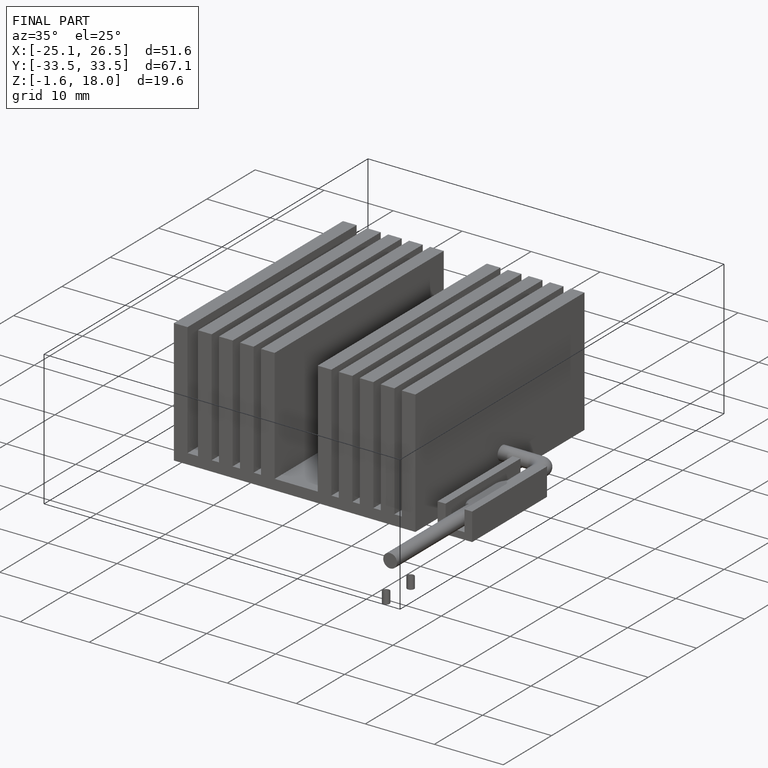
[diagram: finished part — iso view with bounding-box wireframe]
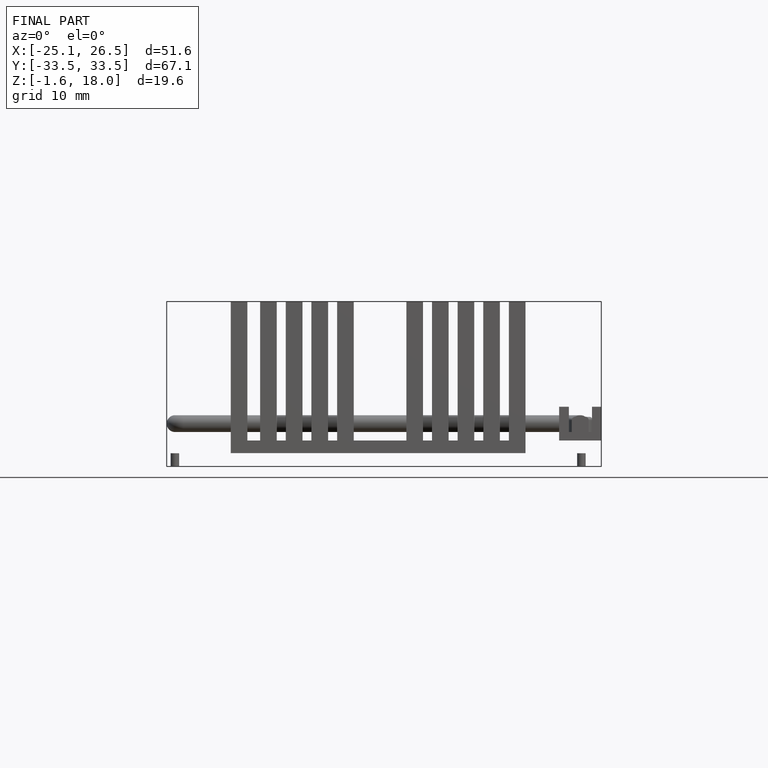
[diagram: finished part — front view with bounding-box wireframe]
